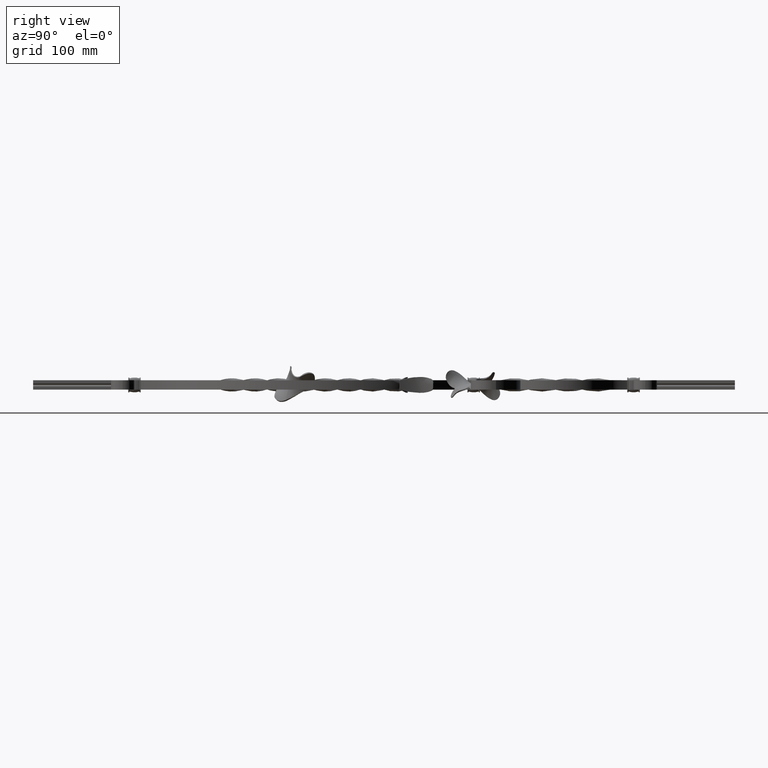
[diagram: clean part render]
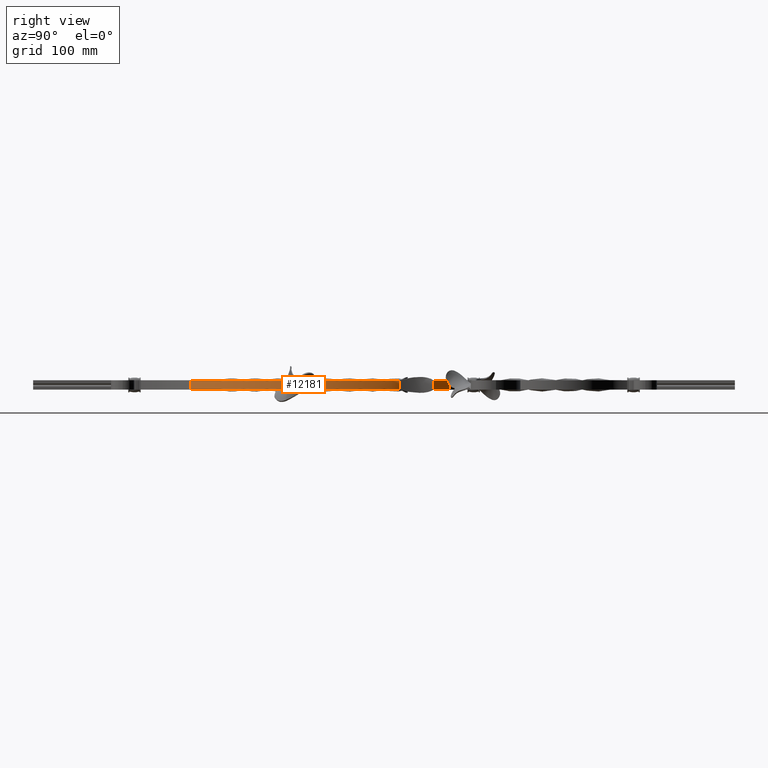
[diagram: same view with one face highlighted and labeled with its STEP entity id]
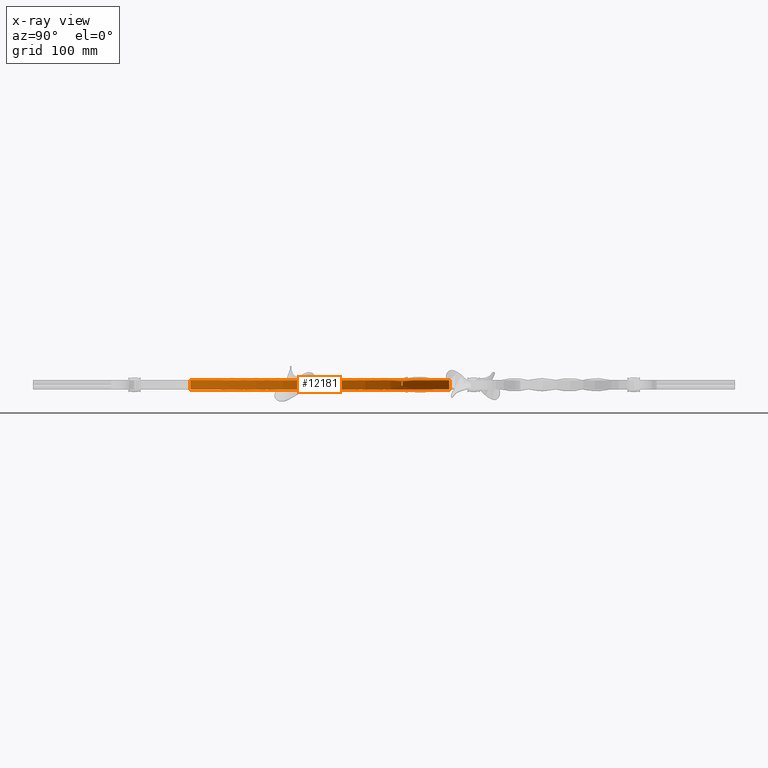
[diagram: x-ray of the same camera — body ghosted, the highlighted face saturated]
A machine part, right view. The second image highlights one B-rep face of the part: STEP entity #12181.
The next image is the same camera in x-ray: the body ghosted, the highlighted face saturated — about 0% of this face is hidden behind the body in this view.
In plain terms, the highlighted cylindrical surface (partial cylindrical patch) has radius 200.108 mm, axis along (-0, -0, -1).
Its self-contained STEP definition (entity closure, byte-faithful):
#613 = VECTOR ( 'NONE', #18303, 1000.000000000000000 ) ;
#2431 = CIRCLE ( 'NONE', #52253, 200.1081432478146098 ) ;
#2691 = VERTEX_POINT ( 'NONE', #8030 ) ;
#2759 = AXIS2_PLACEMENT_3D ( 'NONE', #47255, #17199, #26139 ) ;
#2909 = CARTESIAN_POINT ( 'NONE',  ( 94.59898093892607562, 23.64344368087035519, 4.000000000000001776 ) ) ;
#3028 = ORIENTED_EDGE ( 'NONE', *, *, #38924, .T. ) ;
#3491 = DIRECTION ( 'NONE',  ( 0.4961335752352377670, 0.8682462067433986963, 0.000000000000000000 ) ) ;
#3873 = CIRCLE ( 'NONE', #2759, 200.1081432478146098 ) ;
#4146 = DIRECTION ( 'NONE',  ( -0.000000000000000000, -0.000000000000000000, -1.000000000000000000 ) ) ;
#4977 = ORIENTED_EDGE ( 'NONE', *, *, #47401, .F. ) ;
#5401 = CARTESIAN_POINT ( 'NONE',  ( 95.16483445067544267, 22.81893410144358825, 4.000000000000001776 ) ) ;
#6349 = AXIS2_PLACEMENT_3D ( 'NONE', #37539, #11920, #16741 ) ;
#7761 = CARTESIAN_POINT ( 'NONE',  ( 95.16483445067511582, 22.81893410144404655, 4.000000000000001776 ) ) ;
#8030 = CARTESIAN_POINT ( 'NONE',  ( 52.10799322078705842, -248.4502600297560946, -6.000000000000000000 ) ) ;
#9363 = CARTESIAN_POINT ( 'NONE',  ( 29.17222529540866560, 83.74313655723761940, 6.000000000000000000 ) ) ;
#10819 = DIRECTION ( 'NONE',  ( -1.000000000000000000, 0.000000000000000000, 0.000000000000000000 ) ) ;
#11001 = VERTEX_POINT ( 'NONE', #29065 ) ;
#11920 = DIRECTION ( 'NONE',  ( -0.000000000000000000, -0.000000000000000000, -1.000000000000000000 ) ) ;
#11930 = LINE ( 'NONE', #9363, #613 ) ;
#12181 = ADVANCED_FACE ( 'NONE', ( #14896, #38975 ), #38920, .T. ) ;
#12335 = VERTEX_POINT ( 'NONE', #34778 ) ;
#12379 = VECTOR ( 'NONE', #28760, 1000.000000000000000 ) ;
#12495 = VECTOR ( 'NONE', #49996, 1000.000000000000000 ) ;
#13692 = CARTESIAN_POINT ( 'NONE',  ( 94.59898093892607562, 23.64344368087034809, 0.000000000000000000 ) ) ;
#14896 = FACE_BOUND ( 'NONE', #33324, .T. ) ;
#15660 = VERTEX_POINT ( 'NONE', #2909 ) ;
#16196 = VERTEX_POINT ( 'NONE', #47878 ) ;
#16270 = AXIS2_PLACEMENT_3D ( 'NONE', #32112, #36422, #10819 ) ;
#16741 = DIRECTION ( 'NONE',  ( 0.4961335752352377670, 0.8682462067433986963, 0.000000000000000000 ) ) ;
#17161 = LINE ( 'NONE', #7761, #12495 ) ;
#17199 = DIRECTION ( 'NONE',  ( -0.000000000000000000, 0.000000000000000000, -1.000000000000000000 ) ) ;
#18303 = DIRECTION ( 'NONE',  ( -0.000000000000000000, 0.000000000000000000, 1.000000000000000000 ) ) ;
#19294 = VECTOR ( 'NONE', #35389, 1000.000000000000000 ) ;
#20217 = CARTESIAN_POINT ( 'NONE',  ( 52.10799322078707263, -248.4502600297561230, 6.000000000000000000 ) ) ;
#21302 = DIRECTION ( 'NONE',  ( -1.000000000000000000, 0.000000000000000000, 0.000000000000000000 ) ) ;
#23277 = VERTEX_POINT ( 'NONE', #46014 ) ;
#24336 = ORIENTED_EDGE ( 'NONE', *, *, #24386, .F. ) ;
#24386 = EDGE_CURVE ( 'NONE', #12335, #15660, #41965, .T. ) ;
#24618 = AXIS2_PLACEMENT_3D ( 'NONE', #38147, #4146, #21302 ) ;
#25447 = VERTEX_POINT ( 'NONE', #5401 ) ;
#26110 = EDGE_CURVE ( 'NONE', #16196, #25447, #17161, .T. ) ;
#26139 = DIRECTION ( 'NONE',  ( 1.000000000000000000, 2.522311857869502554E-13, 0.000000000000000000 ) ) ;
#27668 = EDGE_CURVE ( 'NONE', #11001, #2691, #2431, .T. ) ;
#28190 = ORIENTED_EDGE ( 'NONE', *, *, #27668, .F. ) ;
#28642 = CIRCLE ( 'NONE', #16270, 200.1081432478146382 ) ;
#28760 = DIRECTION ( 'NONE',  ( 0.000000000000000000, -0.000000000000000000, 1.000000000000000000 ) ) ;
#29065 = CARTESIAN_POINT ( 'NONE',  ( 29.17222529540864784, 83.74313655723759098, -6.000000000000000000 ) ) ;
#30068 = EDGE_LOOP ( 'NONE', ( #4977, #28190, #3028, #41662 ) ) ;
#30178 = ORIENTED_EDGE ( 'NONE', *, *, #41204, .F. ) ;
#32112 = CARTESIAN_POINT ( 'NONE',  ( -70.10814324781469509, -89.99999975614214520, -0.9999999999999983347 ) ) ;
#32195 = CARTESIAN_POINT ( 'NONE',  ( 52.10799322078705842, -248.4502600297560946, 6.000000000000000000 ) ) ;
#33301 = VERTEX_POINT ( 'NONE', #32195 ) ;
#33324 = EDGE_LOOP ( 'NONE', ( #47201, #24336, #30178, #53608 ) ) ;
#34427 = LINE ( 'NONE', #20217, #12379 ) ;
#34778 = CARTESIAN_POINT ( 'NONE',  ( 94.59898093892607562, 23.64344368087035519, -0.9999999999999983347 ) ) ;
#35389 = DIRECTION ( 'NONE',  ( 0.000000000000000000, 0.000000000000000000, 1.000000000000000000 ) ) ;
#36422 = DIRECTION ( 'NONE',  ( -0.000000000000000000, -0.000000000000000000, 1.000000000000000000 ) ) ;
#37539 = CARTESIAN_POINT ( 'NONE',  ( -70.10814324781469509, -89.99999975614214520, 6.000000000000000000 ) ) ;
#38147 = CARTESIAN_POINT ( 'NONE',  ( -70.10814324781469509, -89.99999975614214520, 0.000000000000000000 ) ) ;
#38920 = CYLINDRICAL_SURFACE ( 'NONE', #24618, 200.1081432478146382 ) ;
#38924 = EDGE_CURVE ( 'NONE', #11001, #23277, #11930, .T. ) ;
#38975 = FACE_OUTER_BOUND ( 'NONE', #30068, .T. ) ;
#41204 = EDGE_CURVE ( 'NONE', #16196, #12335, #28642, .T. ) ;
#41662 = ORIENTED_EDGE ( 'NONE', *, *, #42707, .T. ) ;
#41965 = LINE ( 'NONE', #13692, #19294 ) ;
#42220 = EDGE_CURVE ( 'NONE', #15660, #25447, #3873, .T. ) ;
#42707 = EDGE_CURVE ( 'NONE', #23277, #33301, #52651, .T. ) ;
#46014 = CARTESIAN_POINT ( 'NONE',  ( 29.17222529540864784, 83.74313655723759098, 6.000000000000000000 ) ) ;
#46049 = CARTESIAN_POINT ( 'NONE',  ( -70.10814324781469509, -89.99999975614214520, -6.000000000000000000 ) ) ;
#47201 = ORIENTED_EDGE ( 'NONE', *, *, #42220, .F. ) ;
#47255 = CARTESIAN_POINT ( 'NONE',  ( -70.10814324781469509, -89.99999975614214520, 4.000000000000001776 ) ) ;
#47401 = EDGE_CURVE ( 'NONE', #2691, #33301, #34427, .T. ) ;
#47878 = CARTESIAN_POINT ( 'NONE',  ( 95.16483445067511582, 22.81893410144404655, -0.9999999999999983347 ) ) ;
#49996 = DIRECTION ( 'NONE',  ( 0.000000000000000000, 0.000000000000000000, 1.000000000000000000 ) ) ;
#52253 = AXIS2_PLACEMENT_3D ( 'NONE', #46049, #54656, #3491 ) ;
#52651 = CIRCLE ( 'NONE', #6349, 200.1081432478146098 ) ;
#53608 = ORIENTED_EDGE ( 'NONE', *, *, #26110, .T. ) ;
#54656 = DIRECTION ( 'NONE',  ( -0.000000000000000000, -0.000000000000000000, -1.000000000000000000 ) ) ;